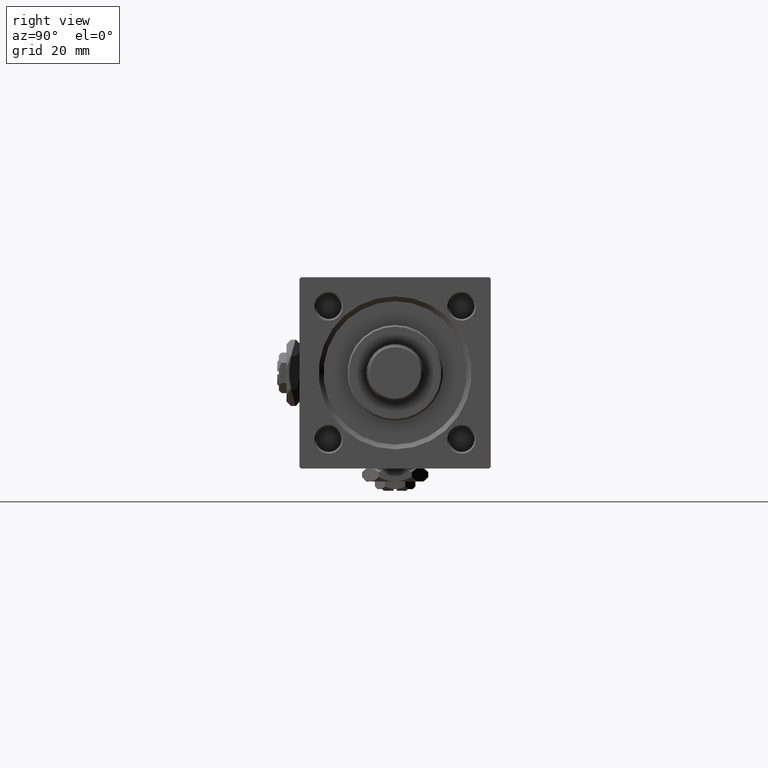
[diagram: clean part render]
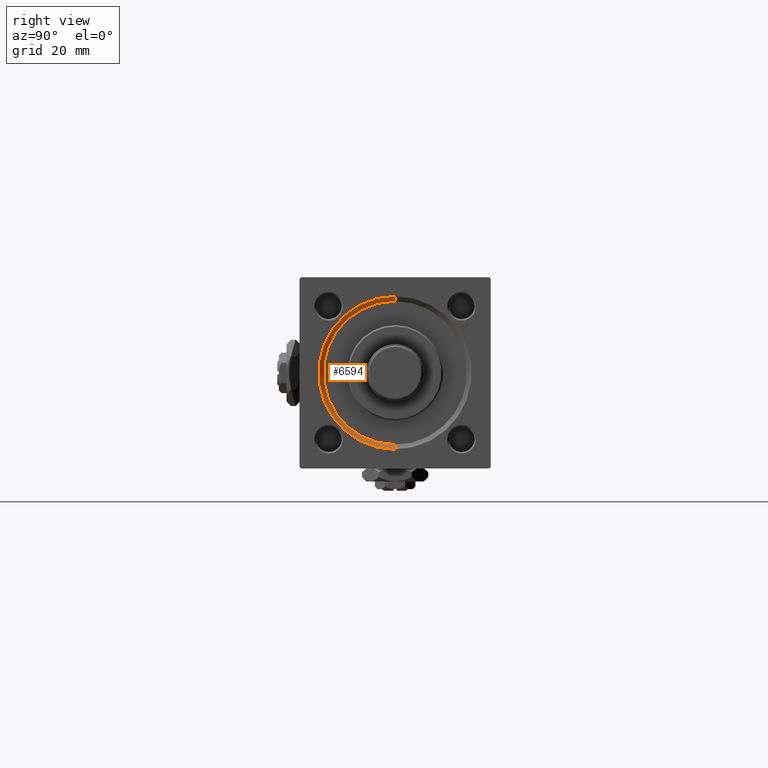
[diagram: same view with one face highlighted and labeled with its STEP entity id]
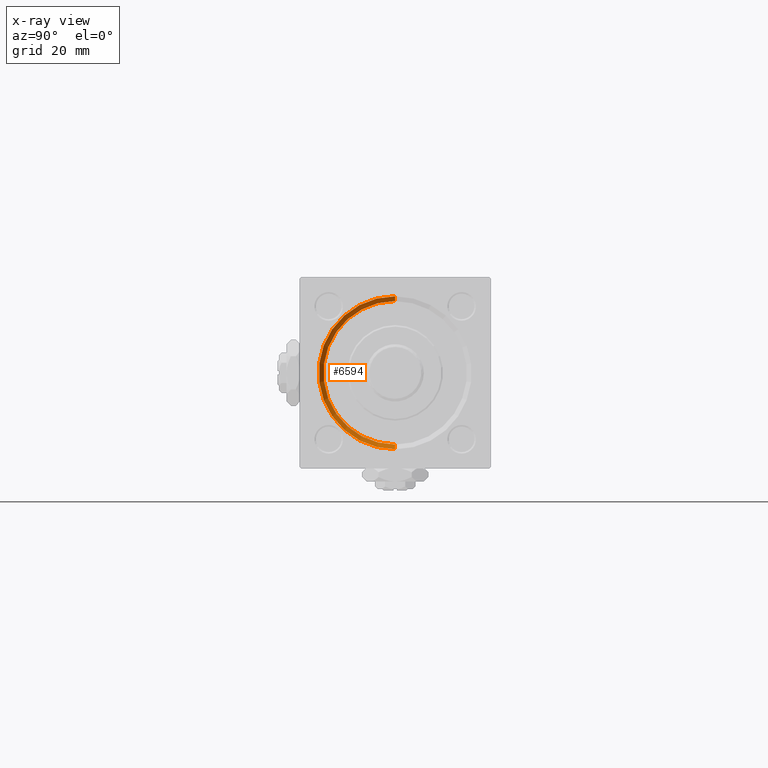
[diagram: x-ray of the same camera — body ghosted, the highlighted face saturated]
A machine part, right view. The second image highlights one B-rep face of the part: STEP entity #6594.
The next image is the same camera in x-ray: the body ghosted, the highlighted face saturated — about 0% of this face is hidden behind the body in this view.
In plain terms, the highlighted conical surface has half-angle 45 deg.
Its self-contained STEP definition (entity closure, byte-faithful):
#505 = CONICAL_SURFACE ( 'NONE', #29389, 22.50000000000000355, 0.7853981633974552734 ) ;
#912 = DIRECTION ( 'NONE',  ( 1.000000000000000000, 0.000000000000000000, 0.000000000000000000 ) ) ;
#1318 = ORIENTED_EDGE ( 'NONE', *, *, #42966, .F. ) ;
#1680 = EDGE_CURVE ( 'NONE', #14486, #47536, #13057, .T. ) ;
#2329 = EDGE_LOOP ( 'NONE', ( #45316, #14438, #1318, #20313 ) ) ;
#4443 = VERTEX_POINT ( 'NONE', #48582 ) ;
#6594 = ADVANCED_FACE ( 'NONE', ( #12879 ), #505, .F. ) ;
#7779 = CARTESIAN_POINT ( 'NONE',  ( 150.4999999999999716, 0.000000000000000000, 0.000000000000000000 ) ) ;
#7830 = VECTOR ( 'NONE', #32283, 1000.000000000000000 ) ;
#8903 = DIRECTION ( 'NONE',  ( 0.000000000000000000, 0.000000000000000000, -1.000000000000000000 ) ) ;
#12879 = FACE_OUTER_BOUND ( 'NONE', #2329, .T. ) ;
#13057 = LINE ( 'NONE', #29269, #32641 ) ;
#14438 = ORIENTED_EDGE ( 'NONE', *, *, #49282, .T. ) ;
#14486 = VERTEX_POINT ( 'NONE', #47089 ) ;
#16262 = CARTESIAN_POINT ( 'NONE',  ( 152.0000000000000000, 0.000000000000000000, -24.00000000000005329 ) ) ;
#16303 = VERTEX_POINT ( 'NONE', #32366 ) ;
#16320 = CARTESIAN_POINT ( 'NONE',  ( 150.4999999999999716, 2.755455298081545172E-15, 22.50000000000000355 ) ) ;
#18786 = DIRECTION ( 'NONE',  ( -1.000000000000000000, 0.000000000000000000, -0.000000000000000000 ) ) ;
#18957 = DIRECTION ( 'NONE',  ( 1.000000000000000000, 0.000000000000000000, 0.000000000000000000 ) ) ;
#20313 = ORIENTED_EDGE ( 'NONE', *, *, #1680, .F. ) ;
#21040 = DIRECTION ( 'NONE',  ( 0.7071067811865426878, 0.000000000000000000, -0.7071067811865524577 ) ) ;
#24574 = CIRCLE ( 'NONE', #33076, 24.00000000000005329 ) ;
#25359 = AXIS2_PLACEMENT_3D ( 'NONE', #7779, #18957, #34915 ) ;
#26491 = CARTESIAN_POINT ( 'NONE',  ( 152.0000000000000000, 0.000000000000000000, 0.000000000000000000 ) ) ;
#29094 = CARTESIAN_POINT ( 'NONE',  ( 150.4999999999999716, 0.000000000000000000, 0.000000000000000000 ) ) ;
#29269 = CARTESIAN_POINT ( 'NONE',  ( 150.4999999999999716, 0.000000000000000000, -22.50000000000000355 ) ) ;
#29389 = AXIS2_PLACEMENT_3D ( 'NONE', #29094, #912, #8903 ) ;
#32283 = DIRECTION ( 'NONE',  ( 0.7071067811865426878, 8.659560562354993255E-17, 0.7071067811865524577 ) ) ;
#32366 = CARTESIAN_POINT ( 'NONE',  ( 152.0000000000000000, 2.939152317953654205E-15, 24.00000000000005329 ) ) ;
#32543 = LINE ( 'NONE', #16320, #7830 ) ;
#32641 = VECTOR ( 'NONE', #21040, 1000.000000000000000 ) ;
#33076 = AXIS2_PLACEMENT_3D ( 'NONE', #26491, #18786, #33293 ) ;
#33293 = DIRECTION ( 'NONE',  ( 0.000000000000000000, 0.000000000000000000, 1.000000000000000000 ) ) ;
#34915 = DIRECTION ( 'NONE',  ( 0.000000000000000000, 0.000000000000000000, 1.000000000000000000 ) ) ;
#38083 = CIRCLE ( 'NONE', #25359, 22.50000000000000355 ) ;
#41194 = EDGE_CURVE ( 'NONE', #4443, #14486, #38083, .T. ) ;
#42966 = EDGE_CURVE ( 'NONE', #47536, #16303, #24574, .T. ) ;
#45316 = ORIENTED_EDGE ( 'NONE', *, *, #41194, .F. ) ;
#47089 = CARTESIAN_POINT ( 'NONE',  ( 150.4999999999999716, 0.000000000000000000, -22.50000000000000355 ) ) ;
#47536 = VERTEX_POINT ( 'NONE', #16262 ) ;
#48582 = CARTESIAN_POINT ( 'NONE',  ( 150.4999999999999716, 2.755455298081545172E-15, 22.50000000000000355 ) ) ;
#49282 = EDGE_CURVE ( 'NONE', #4443, #16303, #32543, .T. ) ;